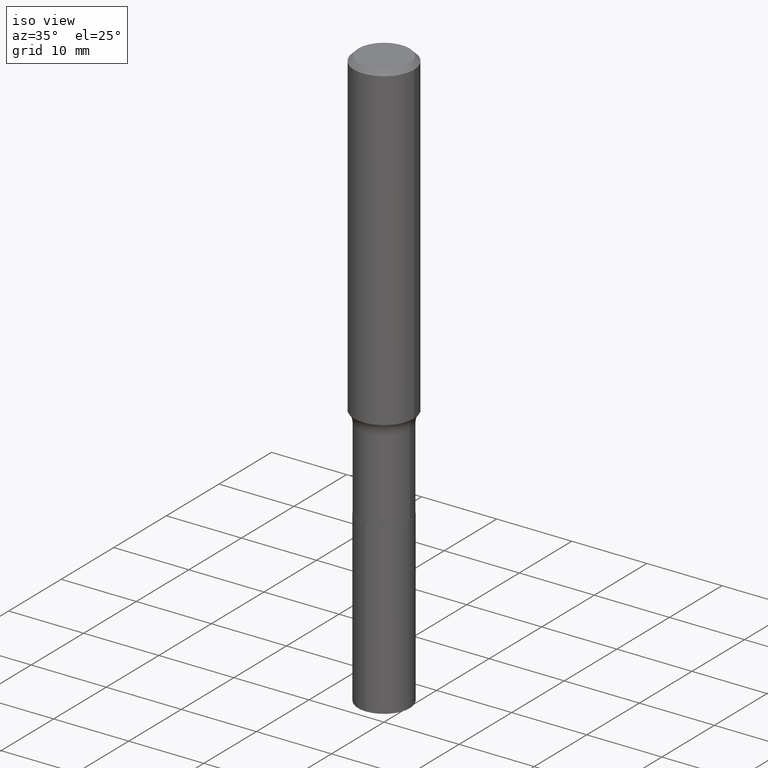
[diagram: clean part render]
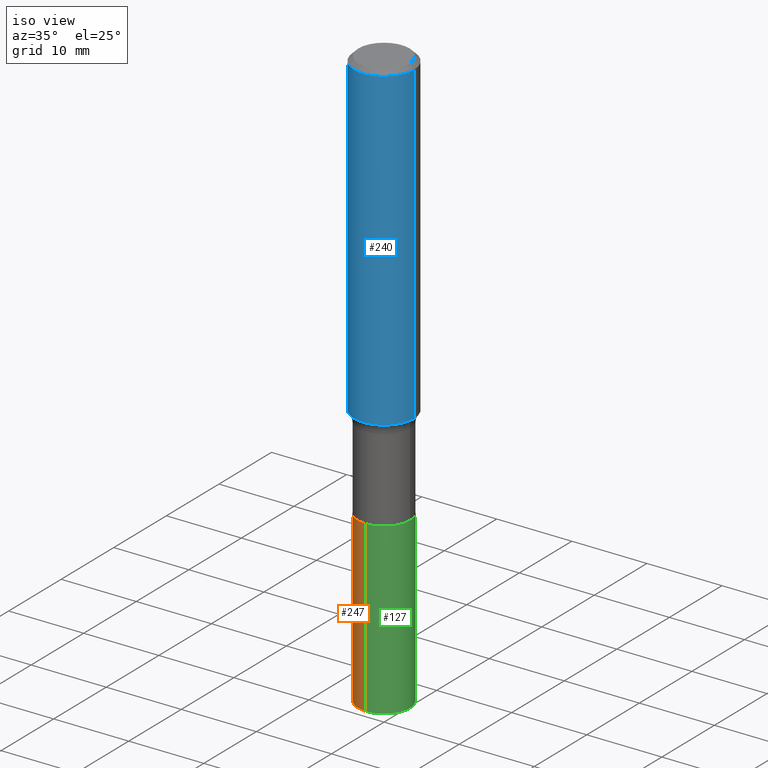
[diagram: same view with three faces highlighted in distinct colors, each labeled with its STEP entity id]
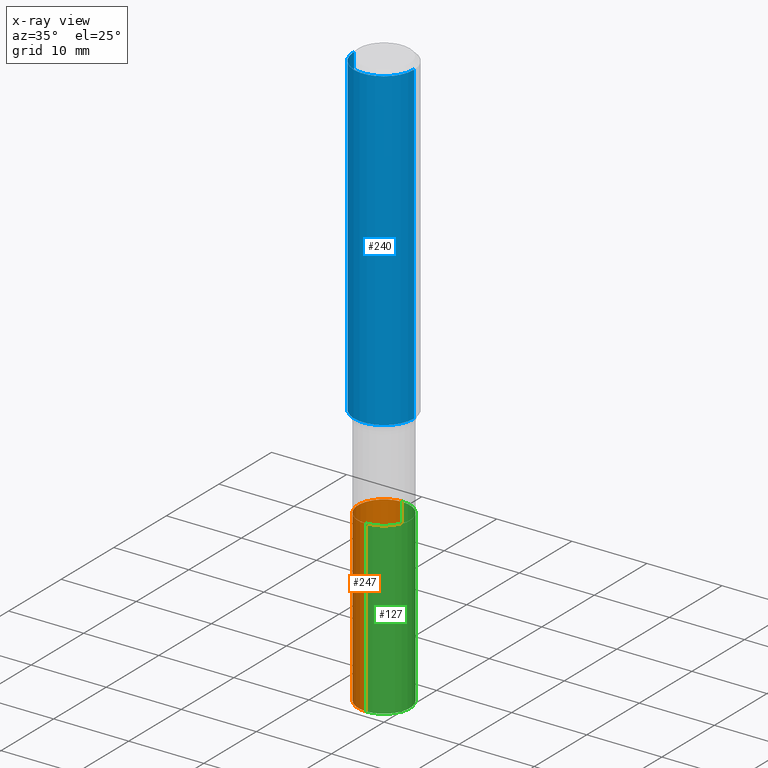
[diagram: x-ray of the same camera — body ghosted, the three highlighted faces saturated]
A machine part, iso view with three faces highlighted in distinct colors.
The next image is the same camera in x-ray (body ghosted, the three faces saturated) — at least one of them is partly hidden behind the body in this view.
Their STEP definitions:

[orange] entity #247 — the highlighted cylindrical surface (edge-blend (fillet) strip) has radius 3.4506 mm, axis along (-0, 0, 1).
#17 = AXIS2_PLACEMENT_3D ( 'NONE', #358, #434, #126 ) ;
#29 = DIRECTION ( 'NONE',  ( -2.445364985460457851E-29, 3.491630016029994283E-15, 1.000000000000000000 ) ) ;
#39 = AXIS2_PLACEMENT_3D ( 'NONE', #467, #282, #202 ) ;
#68 = VERTEX_POINT ( 'NONE', #481 ) ;
#75 = LINE ( 'NONE', #153, #220 ) ;
#77 = DIRECTION ( 'NONE',  ( -2.445364985460457851E-29, 3.491630016029994283E-15, 1.000000000000000000 ) ) ;
#78 = CIRCLE ( 'NONE', #17, 0.1358499999999999985 ) ;
#108 = EDGE_CURVE ( 'NONE', #446, #68, #166, .T. ) ;
#126 = DIRECTION ( 'NONE',  ( -6.982962677686266711E-15, -1.000000000000000000, 4.021859394426593130E-15 ) ) ;
#131 = VERTEX_POINT ( 'NONE', #474 ) ;
#142 = LINE ( 'NONE', #294, #284 ) ;
#148 = FACE_OUTER_BOUND ( 'NONE', #366, .T. ) ;
#153 = CARTESIAN_POINT ( 'NONE',  ( -9.486354797636263038E-16, -0.1358500000000075758, -2.165299999999999336 ) ) ;
#155 = EDGE_CURVE ( 'NONE', #131, #442, #78, .T. ) ;
#166 = CIRCLE ( 'NONE', #39, 0.1358499999999999985 ) ;
#173 = EDGE_CURVE ( 'NONE', #446, #131, #142, .T. ) ;
#180 = DIRECTION ( 'NONE',  ( -6.982962677686266711E-15, -1.000000000000000000, 4.021859394426593130E-15 ) ) ;
#202 = DIRECTION ( 'NONE',  ( -6.982962677686266711E-15, -1.000000000000000000, 4.021859394426593130E-15 ) ) ;
#220 = VECTOR ( 'NONE', #77, 39.37007874015748143 ) ;
#247 = ADVANCED_FACE ( 'NONE', ( #148 ), #250, .T. ) ;
#250 = CYLINDRICAL_SURFACE ( 'NONE', #264, 0.1358499999999999985 ) ;
#255 = ORIENTED_EDGE ( 'NONE', *, *, #108, .T. ) ;
#262 = CARTESIAN_POINT ( 'NONE',  ( 5.295173606032675561E-29, -7.560104542997063911E-15, -2.165299999999999780 ) ) ;
#264 = AXIS2_PLACEMENT_3D ( 'NONE', #262, #29, #180 ) ;
#266 = CARTESIAN_POINT ( 'NONE',  ( -9.486354797636263038E-16, -0.1358500000000075758, -2.165299999999999336 ) ) ;
#282 = DIRECTION ( 'NONE',  ( -2.445364985460457851E-29, 3.491630016029994283E-15, 1.000000000000000000 ) ) ;
#284 = VECTOR ( 'NONE', #375, 39.37007874015748143 ) ;
#292 = ORIENTED_EDGE ( 'NONE', *, *, #155, .F. ) ;
#294 = CARTESIAN_POINT ( 'NONE',  ( 9.652723065301489458E-16, 0.1358499999999924490, -2.165300000000000669 ) ) ;
#333 = ORIENTED_EDGE ( 'NONE', *, *, #449, .T. ) ;
#358 = CARTESIAN_POINT ( 'NONE',  ( 5.295173606032675561E-29, -7.560104542997063911E-15, -2.165299999999999780 ) ) ;
#366 = EDGE_LOOP ( 'NONE', ( #403, #255, #333, #292 ) ) ;
#375 = DIRECTION ( 'NONE',  ( -2.445364985460457851E-29, 3.491630016029994283E-15, 1.000000000000000000 ) ) ;
#403 = ORIENTED_EDGE ( 'NONE', *, *, #173, .F. ) ;
#422 = CARTESIAN_POINT ( 'NONE',  ( 9.652723065301706394E-16, 0.1358499999999893404, -3.055313037220294348 ) ) ;
#434 = DIRECTION ( 'NONE',  ( -2.445364985460457851E-29, 3.491630016029994283E-15, 1.000000000000000000 ) ) ;
#442 = VERTEX_POINT ( 'NONE', #266 ) ;
#446 = VERTEX_POINT ( 'NONE', #422 ) ;
#449 = EDGE_CURVE ( 'NONE', #68, #442, #75, .T. ) ;
#467 = CARTESIAN_POINT ( 'NONE',  ( 7.471580323854498020E-29, -1.066770077841346112E-14, -3.055313037220293904 ) ) ;
#474 = CARTESIAN_POINT ( 'NONE',  ( 9.652723065301710339E-16, 0.1358499999999924490, -2.165300000000000669 ) ) ;
#481 = CARTESIAN_POINT ( 'NONE',  ( -9.486354797636046101E-16, -0.1358500000000106567, -3.055313037220293459 ) ) ;

[blue] entity #240 — the highlighted cylindrical surface (partial cylindrical patch) has radius 4.0005 mm, axis along (-0, 0, 1).
#3 = DIRECTION ( 'NONE',  ( 1.000000000000000000, -6.982962677686265922E-15, 0.000000000000000000 ) ) ;
#31 = CYLINDRICAL_SURFACE ( 'NONE', #441, 0.1575000000000000844 ) ;
#55 = EDGE_CURVE ( 'NONE', #486, #356, #249, .T. ) ;
#61 = ORIENTED_EDGE ( 'NONE', *, *, #343, .F. ) ;
#62 = CARTESIAN_POINT ( 'NONE',  ( -0.1575000000000000844, 1.119104808822158392E-15, -7.747322767151481189E-30 ) ) ;
#84 = DIRECTION ( 'NONE',  ( -2.445468806185136597E-29, 3.491481338843145583E-15, 1.000000000000000000 ) ) ;
#94 = CARTESIAN_POINT ( 'NONE',  ( 4.100728003481664027E-29, -5.854752783439843973E-15, -1.676867843543948355 ) ) ;
#96 = ORIENTED_EDGE ( 'NONE', *, *, #313, .T. ) ;
#104 = VECTOR ( 'NONE', #214, 39.37007874015748143 ) ;
#134 = ORIENTED_EDGE ( 'NONE', *, *, #150, .T. ) ;
#150 = EDGE_CURVE ( 'NONE', #486, #222, #308, .T. ) ;
#152 = CARTESIAN_POINT ( 'NONE',  ( 0.1575000000000000844, -1.099816621735587677E-15, 7.679978421878603638E-30 ) ) ;
#157 = EDGE_LOOP ( 'NONE', ( #329, #134, #96, #61 ) ) ;
#158 = VECTOR ( 'NONE', #457, 39.37007874015748143 ) ;
#162 = DIRECTION ( 'NONE',  ( 1.000000000000000000, -6.982962677686265922E-15, 0.000000000000000000 ) ) ;
#167 = AXIS2_PLACEMENT_3D ( 'NONE', #458, #456, #3 ) ;
#206 = CARTESIAN_POINT ( 'NONE',  ( -0.1575000000000001676, -4.735647974617684792E-15, -1.676867843543948355 ) ) ;
#214 = DIRECTION ( 'NONE',  ( -2.445468806185136877E-29, 3.491481338843145188E-15, 1.000000000000000000 ) ) ;
#222 = VERTEX_POINT ( 'NONE', #326 ) ;
#224 = FACE_OUTER_BOUND ( 'NONE', #157, .T. ) ;
#226 = CARTESIAN_POINT ( 'NONE',  ( 0.000000000000000000, 0.000000000000000000, 0.000000000000000000 ) ) ;
#240 = ADVANCED_FACE ( 'NONE', ( #224 ), #31, .T. ) ;
#246 = AXIS2_PLACEMENT_3D ( 'NONE', #94, #84, #162 ) ;
#249 = LINE ( 'NONE', #62, #104 ) ;
#308 = CIRCLE ( 'NONE', #246, 0.1575000000000001954 ) ;
#313 = EDGE_CURVE ( 'NONE', #222, #472, #419, .T. ) ;
#326 = CARTESIAN_POINT ( 'NONE',  ( 0.1575000000000001676, -6.954569405175432242E-15, -1.676867843543948355 ) ) ;
#329 = ORIENTED_EDGE ( 'NONE', *, *, #55, .F. ) ;
#343 = EDGE_CURVE ( 'NONE', #356, #472, #462, .T. ) ;
#356 = VERTEX_POINT ( 'NONE', #454 ) ;
#388 = CARTESIAN_POINT ( 'NONE',  ( 0.1575000000000000011, -1.182302868365756679E-15, -0.02362500000000015282 ) ) ;
#417 = DIRECTION ( 'NONE',  ( -2.445468806185136597E-29, 3.491481338843145583E-15, 1.000000000000000000 ) ) ;
#419 = LINE ( 'NONE', #152, #158 ) ;
#441 = AXIS2_PLACEMENT_3D ( 'NONE', #226, #417, #490 ) ;
#454 = CARTESIAN_POINT ( 'NONE',  ( -0.1575000000000000011, -1.849514706212847898E-15, -0.02362500000000015282 ) ) ;
#456 = DIRECTION ( 'NONE',  ( -2.445468806185136597E-29, 3.491481338843145583E-15, 1.000000000000000000 ) ) ;
#457 = DIRECTION ( 'NONE',  ( -2.445468806185136877E-29, 3.491481338843145188E-15, 1.000000000000000000 ) ) ;
#458 = CARTESIAN_POINT ( 'NONE',  ( 5.777420054612421980E-31, -8.248624663016985234E-17, -0.02362500000000015282 ) ) ;
#462 = CIRCLE ( 'NONE', #167, 0.1575000000000000011 ) ;
#472 = VERTEX_POINT ( 'NONE', #388 ) ;
#486 = VERTEX_POINT ( 'NONE', #206 ) ;
#490 = DIRECTION ( 'NONE',  ( 1.000000000000000000, -6.982962677686267499E-15, 4.876176775795936353E-29 ) ) ;

[green] entity #127 — the highlighted cylindrical surface (edge-blend (fillet) strip) has radius 3.4506 mm, axis along (-0, 0, 1).
#9 = DIRECTION ( 'NONE',  ( -6.982962677686266711E-15, -1.000000000000000000, 4.021859394426593130E-15 ) ) ;
#14 = CARTESIAN_POINT ( 'NONE',  ( 5.295173606032675561E-29, -7.560104542997063911E-15, -2.165299999999999780 ) ) ;
#27 = ORIENTED_EDGE ( 'NONE', *, *, #221, .F. ) ;
#37 = DIRECTION ( 'NONE',  ( -6.982962677686266711E-15, -1.000000000000000000, 4.021859394426593130E-15 ) ) ;
#38 = CARTESIAN_POINT ( 'NONE',  ( 7.471580323854498020E-29, -1.066770077841346112E-14, -3.055313037220293904 ) ) ;
#42 = DIRECTION ( 'NONE',  ( -2.445364985460457851E-29, 3.491630016029994283E-15, 1.000000000000000000 ) ) ;
#51 = DIRECTION ( 'NONE',  ( -2.445364985460457851E-29, 3.491630016029994283E-15, 1.000000000000000000 ) ) ;
#59 = CIRCLE ( 'NONE', #330, 0.1358499999999999985 ) ;
#68 = VERTEX_POINT ( 'NONE', #481 ) ;
#69 = CARTESIAN_POINT ( 'NONE',  ( 5.295173606032675561E-29, -7.560104542997063911E-15, -2.165299999999999780 ) ) ;
#73 = AXIS2_PLACEMENT_3D ( 'NONE', #38, #42, #37 ) ;
#75 = LINE ( 'NONE', #153, #220 ) ;
#77 = DIRECTION ( 'NONE',  ( -2.445364985460457851E-29, 3.491630016029994283E-15, 1.000000000000000000 ) ) ;
#101 = ORIENTED_EDGE ( 'NONE', *, *, #449, .F. ) ;
#117 = AXIS2_PLACEMENT_3D ( 'NONE', #14, #51, #9 ) ;
#127 = ADVANCED_FACE ( 'NONE', ( #355 ), #362, .T. ) ;
#131 = VERTEX_POINT ( 'NONE', #474 ) ;
#142 = LINE ( 'NONE', #294, #284 ) ;
#153 = CARTESIAN_POINT ( 'NONE',  ( -9.486354797636263038E-16, -0.1358500000000075758, -2.165299999999999336 ) ) ;
#172 = DIRECTION ( 'NONE',  ( -6.982962677686266711E-15, -1.000000000000000000, 4.021859394426593130E-15 ) ) ;
#173 = EDGE_CURVE ( 'NONE', #446, #131, #142, .T. ) ;
#219 = ORIENTED_EDGE ( 'NONE', *, *, #173, .T. ) ;
#220 = VECTOR ( 'NONE', #77, 39.37007874015748143 ) ;
#221 = EDGE_CURVE ( 'NONE', #442, #131, #59, .T. ) ;
#251 = EDGE_LOOP ( 'NONE', ( #354, #219, #27, #101 ) ) ;
#265 = CIRCLE ( 'NONE', #73, 0.1358499999999999985 ) ;
#266 = CARTESIAN_POINT ( 'NONE',  ( -9.486354797636263038E-16, -0.1358500000000075758, -2.165299999999999336 ) ) ;
#284 = VECTOR ( 'NONE', #375, 39.37007874015748143 ) ;
#294 = CARTESIAN_POINT ( 'NONE',  ( 9.652723065301489458E-16, 0.1358499999999924490, -2.165300000000000669 ) ) ;
#330 = AXIS2_PLACEMENT_3D ( 'NONE', #69, #336, #172 ) ;
#336 = DIRECTION ( 'NONE',  ( -2.445364985460457851E-29, 3.491630016029994283E-15, 1.000000000000000000 ) ) ;
#354 = ORIENTED_EDGE ( 'NONE', *, *, #357, .T. ) ;
#355 = FACE_OUTER_BOUND ( 'NONE', #251, .T. ) ;
#357 = EDGE_CURVE ( 'NONE', #68, #446, #265, .T. ) ;
#362 = CYLINDRICAL_SURFACE ( 'NONE', #117, 0.1358499999999999985 ) ;
#375 = DIRECTION ( 'NONE',  ( -2.445364985460457851E-29, 3.491630016029994283E-15, 1.000000000000000000 ) ) ;
#422 = CARTESIAN_POINT ( 'NONE',  ( 9.652723065301706394E-16, 0.1358499999999893404, -3.055313037220294348 ) ) ;
#442 = VERTEX_POINT ( 'NONE', #266 ) ;
#446 = VERTEX_POINT ( 'NONE', #422 ) ;
#449 = EDGE_CURVE ( 'NONE', #68, #442, #75, .T. ) ;
#474 = CARTESIAN_POINT ( 'NONE',  ( 9.652723065301710339E-16, 0.1358499999999924490, -2.165300000000000669 ) ) ;
#481 = CARTESIAN_POINT ( 'NONE',  ( -9.486354797636046101E-16, -0.1358500000000106567, -3.055313037220293459 ) ) ;